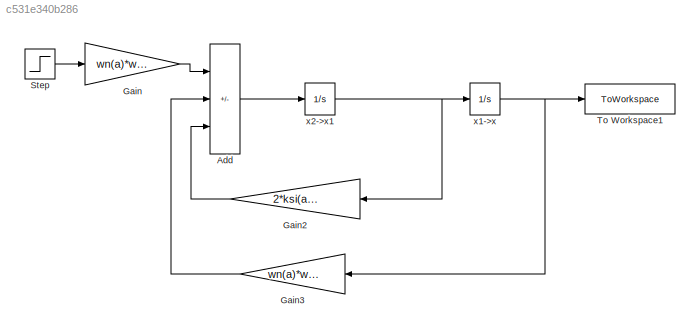
MODEL slx_c531e340b286
KIND model
CONFIG AbsTol = auto
CONFIG EnableMultiTasking = off
CONFIG FixedStep = auto
CONFIG MaxStep = 0.01
CONFIG MinStep = auto
CONFIG RelTol = 1e-3
CONFIG SampleTimeConstraint = Unconstrained
CONFIG Solver = VariableStepAuto
CONFIG SolverName = VariableStepAuto
CONFIG StartTime = 0.0
CONFIG StopTime = 10.0
BLOCK [Sum] Add
  IconShape = rectangular
  Inputs = +--
  Ports = [3, 1]
BLOCK [Gain] Gain
  Gain = wn(a)*wn(a)
BLOCK [Gain] Gain2
  Gain = 2*ksi(a)*wn(a)
BLOCK [Gain] Gain3
  Gain = wn(a)*wn(a)
BLOCK [Step] Step
  After = u0+du
  Before = u0
  SampleTime = 1
  Time = 2
BLOCK [ToWorkspace] To Workspace1
  FixptAsFi = on
  MaxDataPoints = inf
  Ports = [1]
  SampleTime = -1
  VariableName = x
BLOCK [Integrator] x1->x
  InitialCondition = x0
  Ports = [1, 1]
BLOCK [Integrator] x2->x1
  InitialCondition = x10
  Ports = [1, 1]
LINE Add:1 -> x2->x1:1
LINE Gain2:1 -> Add:3
LINE Gain3:1 -> Add:2
LINE Gain:1 -> Add:1
LINE Step:1 -> Gain:1
NET x1->x:1 -> Gain3:1, To Workspace1:1
NET x2->x1:1 -> Gain2:1, x1->x:1
note: NET lines group one-source signal fan-out (src -> all destinations, sorted); 1:1 wires keep LINE
